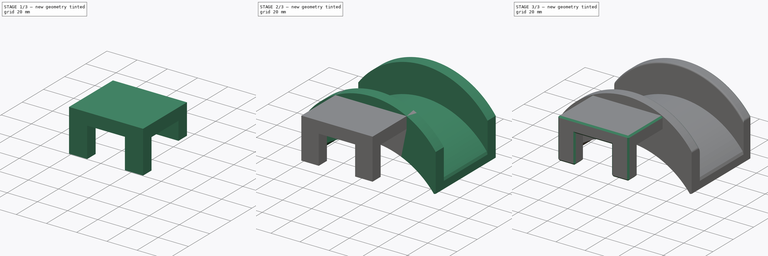
[diagram: build sequence overview — one tinted view per stage of 3, left to right]
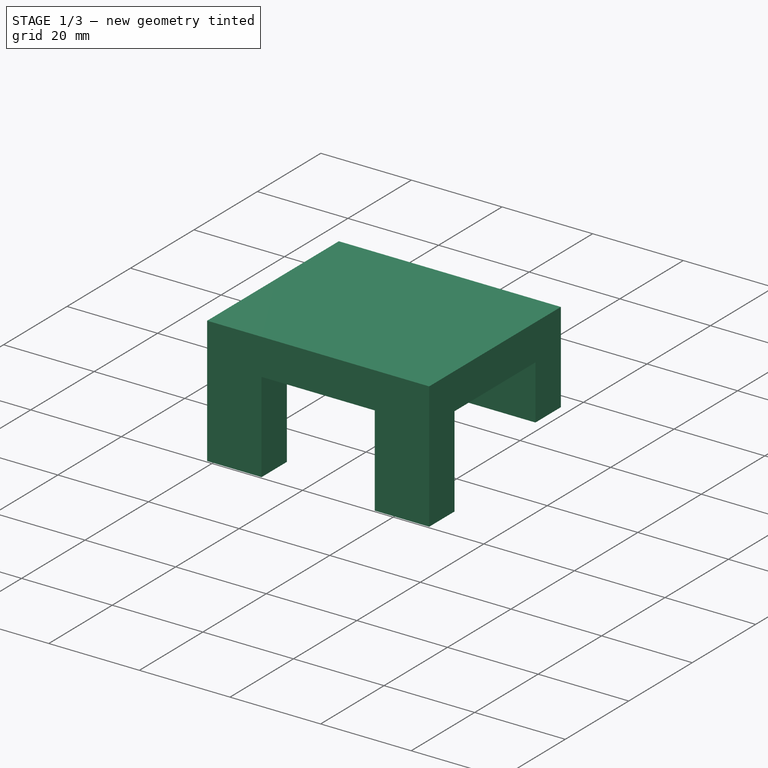
[diagram: stage 1 of 3 — iso view after this stage's code; geometry added in this stage tinted green]
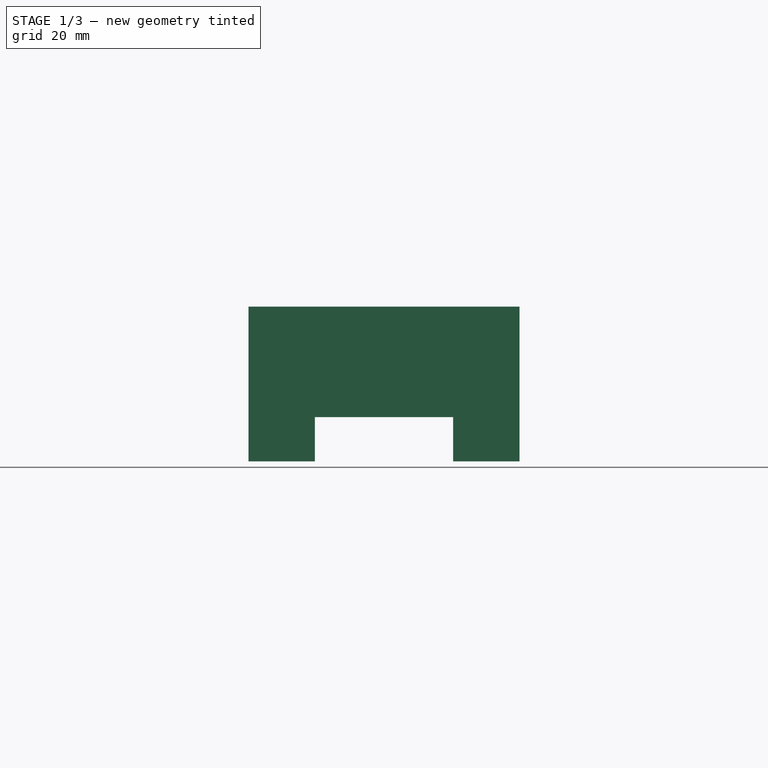
[diagram: stage 1 of 3 — front view after this stage's code; geometry added in this stage tinted green]
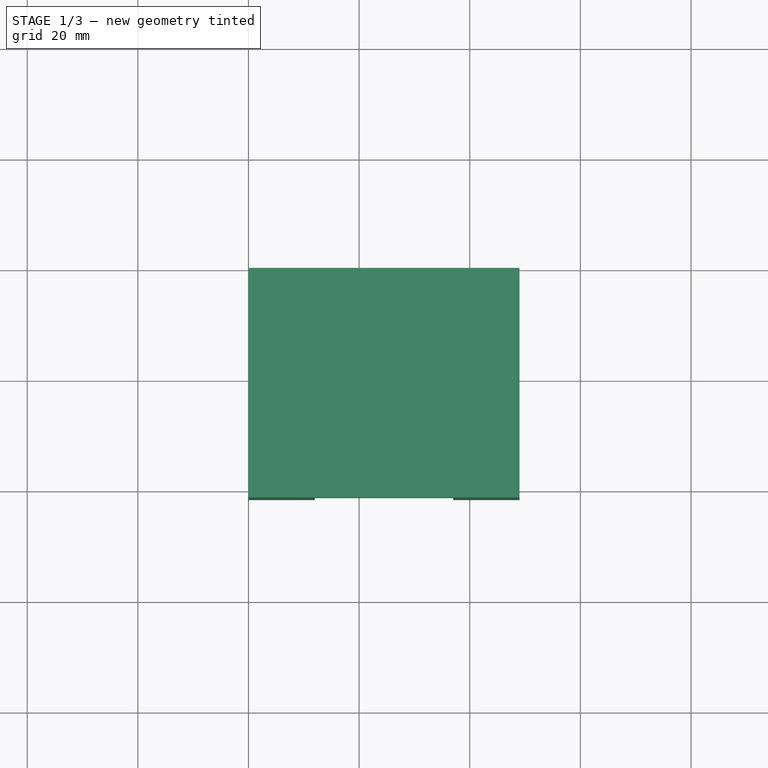
[diagram: stage 1 of 3 — top view after this stage's code; geometry added in this stage tinted green]
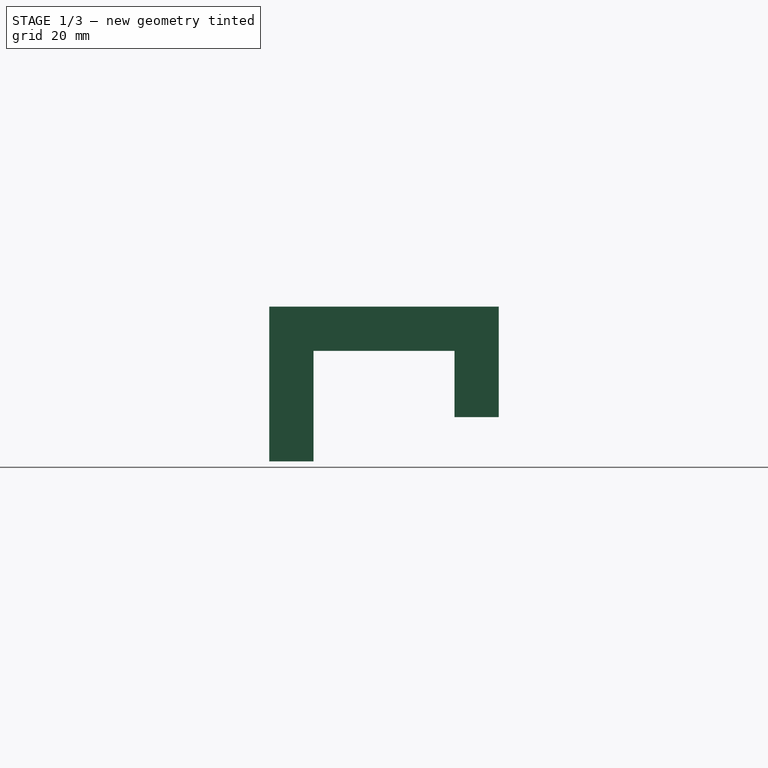
[diagram: stage 1 of 3 — right view after this stage's code; geometry added in this stage tinted green]
FCSTD DOCUMENT  (FreeCAD 0.19R20839 (Git))
Label: shelf hook
License: All rights reserved
LicenseURL: http://en.wikipedia.org/wiki/All_rights_reserved
objects: Sketcher::SketchObject×4, PartDesign::Plane×3, PartDesign::Chamfer×2, PartDesign::Pad×1, PartDesign::Pocket×1, PartDesign::AdditivePipe×1, PartDesign::Body×1, Part::Fillet×1, Part::Chamfer×1
note: 20 computed .brp shape members not serialized (recipe doc carries the construction recipe); baked Part::Feature solids carry a one-line shape summary decoded from their .brp

FEATURE [Sketcher::SketchObject] Sketch
  MapMode = 5
  Placement = pos=(0,0,0) rot=(0.57735,0.57735,0.57735;2.0944rad)
  Support = -> [YZ_Plane]
  sketch-geometry (8):
    g0: LineSegment StartX=0 StartY=25 StartZ=0 EndX=0 EndY=45 EndZ=0
    g1: LineSegment StartX=0 StartY=45 StartZ=0 EndX=-41.5 EndY=45 EndZ=0
    g2: LineSegment StartX=-41.5 StartY=45 StartZ=0 EndX=-41.5 EndY=17 EndZ=0
    g3: LineSegment StartX=-41.5 StartY=17 StartZ=0 EndX=-33.5 EndY=17 EndZ=0
    g4: LineSegment StartX=-33.5 StartY=17 StartZ=0 EndX=-33.5 EndY=37 EndZ=0
    g5: LineSegment StartX=-33.5 StartY=37 StartZ=0 EndX=-8 EndY=37 EndZ=0
    g6: LineSegment StartX=-8 StartY=37 StartZ=0 EndX=-8 EndY=25 EndZ=0
    g7: LineSegment StartX=-8 StartY=25 StartZ=0 EndX=0 EndY=25 EndZ=0
  constraints (24):
    c: Coincident(g0,g1)
    c: Horizontal(g1)
    c: Coincident(g1,g2)
    c: Vertical(g2)
    c: Coincident(g2,g3)
    c: Horizontal(g3)
    c: Coincident(g3,g4)
    c: Coincident(g4,g5)
    c: Horizontal(g5)
    c: Coincident(g5,g6)
    c: Vertical(g6)
    c: DistanceX(g5,g5) = 25.5
    c: DistanceY(g4,g4) = 20
    c: Vertical(g4)
    c: DistanceY(g0,g0) = 20
    c: Equal(g3,g7)
    c: DistanceX(g3,g3) = 8
    c: DistanceY(g5,g0) = 8
    c: Coincident(g6,g7)
    c: Horizontal(g7)
    c: Coincident(g0,g7)
    c: Vertical(g0)
    c: PointOnObject(g0,g-2)
    c: DistanceY(g-1,g0) = 45
FEATURE [PartDesign::Pad] Pad
  Length = 49
  Length2 = 100
  Placement = pos=(0,0,0) rot=(0.57735,0.57735,0.57735;2.0944rad)
  Profile = -> Sketch
  Refine = true
  Type = 0
FEATURE [PartDesign::Plane] DatumPlane
  Length = 60
  MapMode = 5
  Placement = pos=(-4.8e-15,7.5e-15,17) rot=(0.707107,0.707107,0;3.14159rad)
  ResizeMode = 0
  Support = -> [Pad]
  Width = 60
FEATURE [Sketcher::SketchObject] Sketch001
  ExternalGeometry = -> [Pad]
  MapMode = 5
  Placement = pos=(-4.8e-15,7.5e-15,17) rot=(0.707107,0.707107,0;3.14159rad)
  Support = -> [DatumPlane]
  sketch-geometry (6):
    g0: LineSegment StartX=-31.5 StartY=37 StartZ=0 EndX=-51.5 EndY=37 EndZ=0
    g1: LineSegment StartX=-51.5 StartY=37 StartZ=0 EndX=-51.5 EndY=12 EndZ=0
    g2: LineSegment StartX=-51.5 StartY=12 StartZ=0 EndX=-31.5 EndY=12 EndZ=0
    g3: LineSegment StartX=-31.5 StartY=12 StartZ=0 EndX=-31.5 EndY=37 EndZ=0
    g4: LineSegment [constr] StartX=-41.5 StartY=49 StartZ=0 EndX=-41.5 EndY=37 EndZ=0
    g5: LineSegment [constr] StartX=-41.5 StartY=12 StartZ=0 EndX=-41.5 EndY=2.13e-14 EndZ=0
  constraints (18):
    c: Coincident(g0,g1)
    c: Coincident(g1,g2)
    c: Coincident(g2,g3)
    c: Coincident(g3,g0)
    c: Horizontal(g0)
    c: Horizontal(g2)
    c: Vertical(g1)
    c: Vertical(g3)
    c: DistanceY(g3,g3) = 25
    c: Coincident(g4,g-3)
    c: PointOnObject(g4,g0)
    c: PointOnObject(g5,g2)
    c: Coincident(g5,g-4)
    c: Perpendicular(g2,g5)
    c: Perpendicular(g0,g4)
    c: Equal(g4,g5)
    c: DistanceX(g1,g5) = 10
    c: DistanceX(g5,g2) = 10
FEATURE [PartDesign::Pocket] Pocket
  BaseFeature = -> Pad
  Length = 20
  Length2 = 100
  Offset = 22
  Placement = pos=(0,0,0) rot=(0.57735,0.57735,0.57735;2.0944rad)
  Profile = -> Sketch001
  Refine = true
  Type = 0
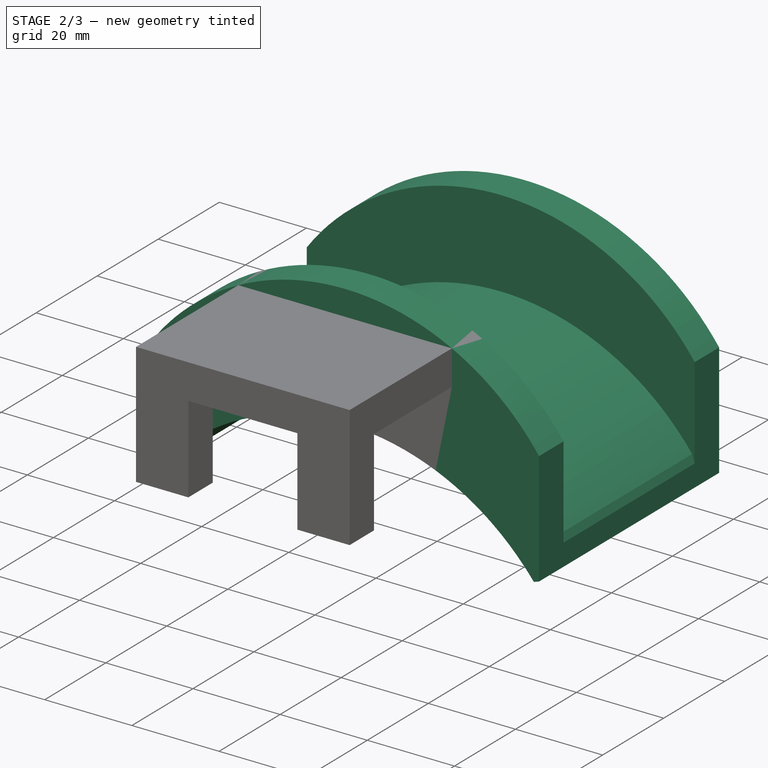
[diagram: stage 2 of 3 — iso view after this stage's code; geometry added in this stage tinted green]
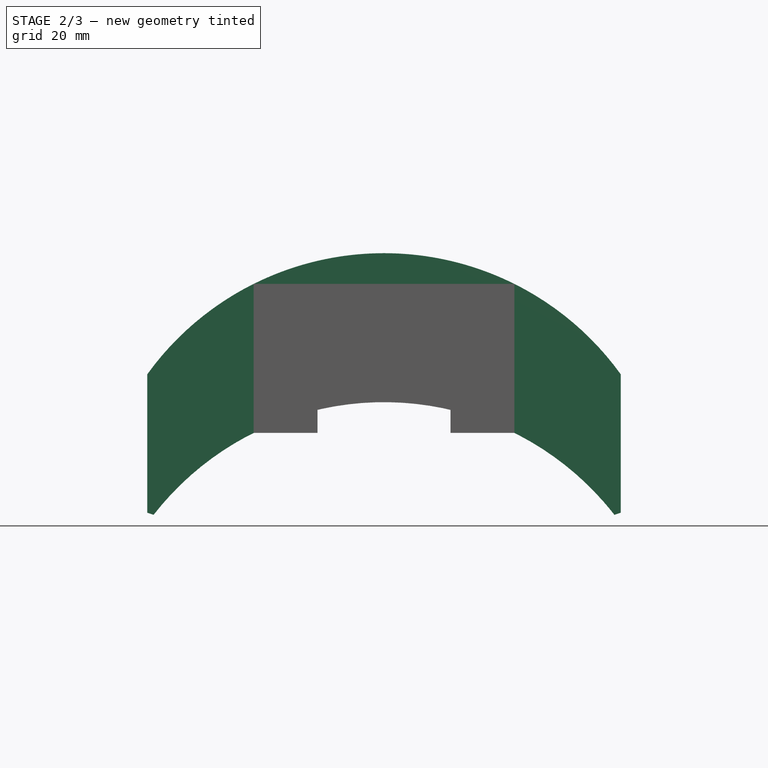
[diagram: stage 2 of 3 — front view after this stage's code; geometry added in this stage tinted green]
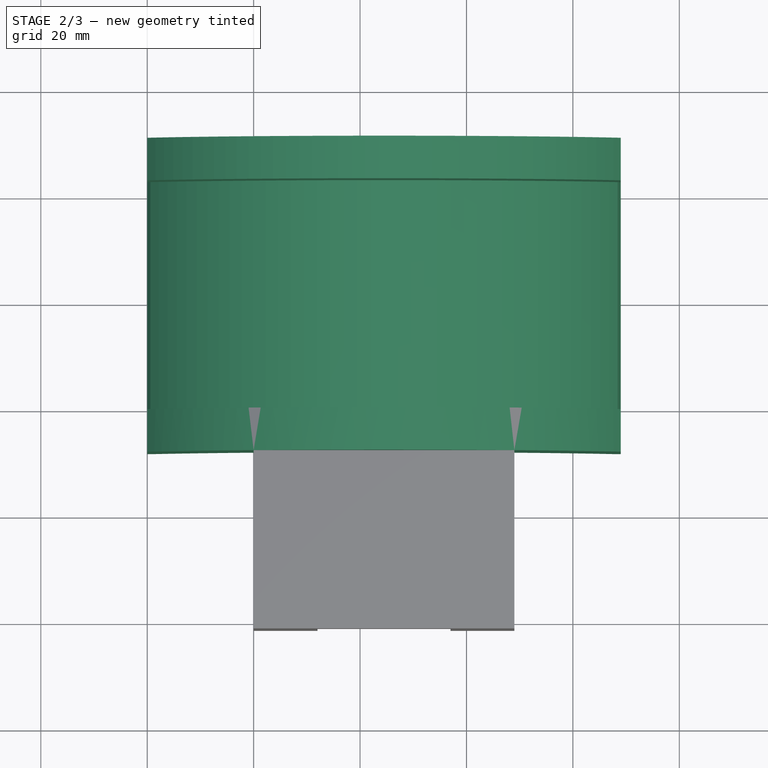
[diagram: stage 2 of 3 — top view after this stage's code; geometry added in this stage tinted green]
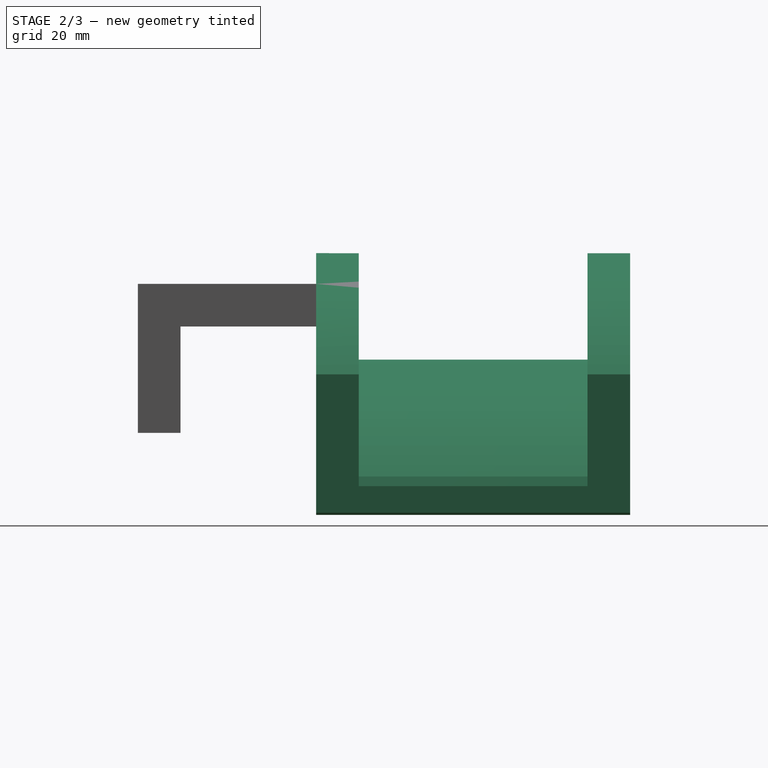
[diagram: stage 2 of 3 — right view after this stage's code; geometry added in this stage tinted green]
FEATURE [PartDesign::Plane] DatumPlane001
  AttachmentOffset = pos=(0,0,20) rot=(0,0,1;0rad)
  Length = 60
  MapMode = 5
  Placement = pos=(69,-1.52e-14,1.52e-14) rot=(0.57735,0.57735,0.57735;2.0944rad)
  ResizeMode = 0
  Support = -> [Pocket]
  Width = 60
FEATURE [Sketcher::SketchObject] Sketch002
  ExternalGeometry = -> [Sketch]
  MapMode = 5
  Placement = pos=(69,-1.52e-14,1.52e-14) rot=(0.57735,0.57735,0.57735;2.0944rad)
  Support = -> [DatumPlane001]
  sketch-geometry (8):
    g0: LineSegment StartX=43 StartY=8 StartZ=0 EndX=43 EndY=28 EndZ=0
    g1: LineSegment StartX=43 StartY=28 StartZ=0 EndX=51 EndY=28 EndZ=0
    g2: LineSegment StartX=51 StartY=28 StartZ=0 EndX=51 EndY=0 EndZ=0
    g3: LineSegment StartX=43 StartY=8 StartZ=0 EndX=0 EndY=8 EndZ=0
    g4: LineSegment StartX=-8 StartY=0 StartZ=0 EndX=51 EndY=0 EndZ=0
    g5: LineSegment StartX=0 StartY=8 StartZ=0 EndX=0 EndY=28 EndZ=0
    g6: LineSegment StartX=0 StartY=28 StartZ=0 EndX=-8 EndY=28 EndZ=0
    g7: LineSegment StartX=-8 StartY=28 StartZ=0 EndX=-8 EndY=0 EndZ=0
  constraints (24):
    c: Coincident(g0,g1)
    c: Horizontal(g1)
    c: Coincident(g1,g2)
    c: Vertical(g2)
    c: Vertical(g0)
    c: DistanceY(g0,g3) = 0
    c: DistanceX(g3,g0) = 43
    c: DistanceY(g4,g3) = 8
    c: DistanceX(g1,g1) = 8
    c: DistanceY(g0,g0) = 20
    c: Coincident(g3,g0)
    c: Vertical(g5)
    c: Horizontal(g6)
    c: Equal(g1,g6)
    c: Equal(g5,g0)
    c: Vertical(g7)
    c: PointOnObject(g5,g-2)
    c: Coincident(g5,g6)
    c: Coincident(g6,g7)
    c: Coincident(g4,g7)
    c: Coincident(g5,g3)
    c: PointOnObject(g4,g-1)
    c: Coincident(g4,g2)
    c: PointOnObject(g2,g-1)
FEATURE [PartDesign::Plane] DatumPlane002
  Length = 60
  MapMode = 5
  Placement = pos=(0,0,0) rot=(0.57735,0.57735,0.57735;4.18879rad)
  ResizeMode = 0
  Support = -> [Pocket]
  Width = 60
FEATURE [Sketcher::SketchObject] Sketch003
  ExternalGeometry = -> [Pad,Sketch002]
  MapMode = 5
  Placement = pos=(0,0,0) rot=(0.57735,0.57735,0.57735;4.18879rad)
  Support = -> [DatumPlane002]
  sketch-geometry (1):
    g0: ArcOfCircle CenterX=-4.08824 CenterY=24.5 CenterZ=0 NormalX=0 NormalY=0 NormalZ=1 AngleXU=0 Radius=54.8626 StartAngle=5.33713 EndAngle=7.22925
  constraints (4):
    c: PointOnObject(g-3,g0)
    c: PointOnObject(g-4,g0)
    c: Coincident(g0,g-5)
    c: DistanceX(g0,g0) = 0
FEATURE [PartDesign::AdditivePipe] AdditivePipe
  AuxilleryCurvelinear = true
  AuxillerySpineTangent = false
  BaseFeature = -> Pocket
  Binormal = (0,0,0)
  Mode = 1
  Placement = pos=(0,0,0) rot=(0.57735,0.57735,0.57735;2.0944rad)
  Profile = -> Sketch002
  Refine = true
  Spine = -> Sketch003
  SpineTangent = true
  Transformation = 0
  Transition = 0
FEATURE [PartDesign::Chamfer] Chamfer
  Base = -> AdditivePipe [Edge15,Edge8]
  BaseFeature = -> AdditivePipe
  Placement = pos=(0,0,0) rot=(0.57735,0.57735,0.57735;2.0944rad)
  Refine = true
  Size = 2
  SupportTransform = true
FEATURE [PartDesign::Chamfer] Chamfer001
  Base = -> Chamfer [Edge32,Edge7]
  BaseFeature = -> Chamfer
  Placement = pos=(0,0,0) rot=(0.57735,0.57735,0.57735;2.0944rad)
  Refine = true
  Size = 1
  SupportTransform = true
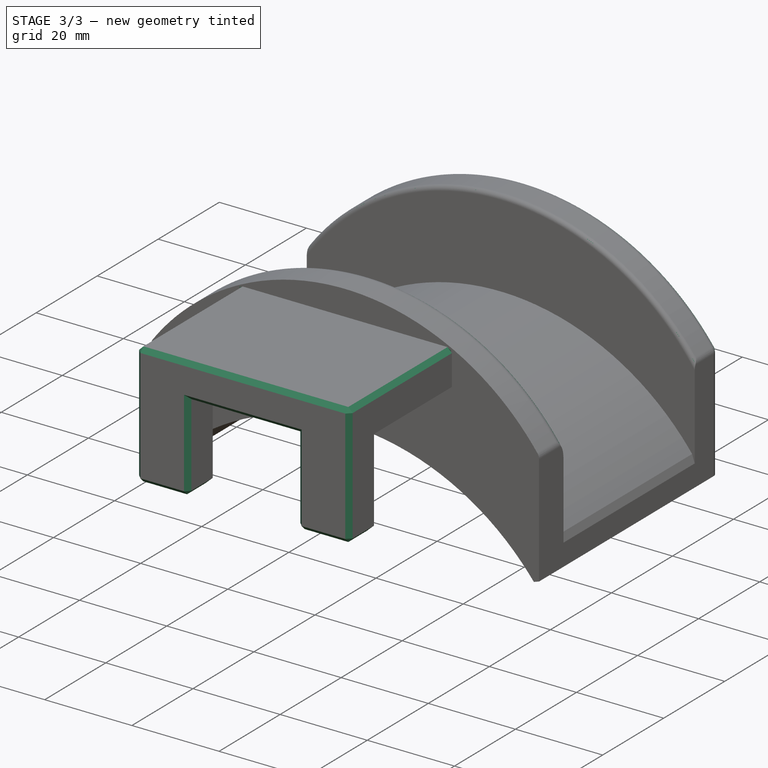
[diagram: stage 3 of 3 — iso view after this stage's code; geometry added in this stage tinted green]
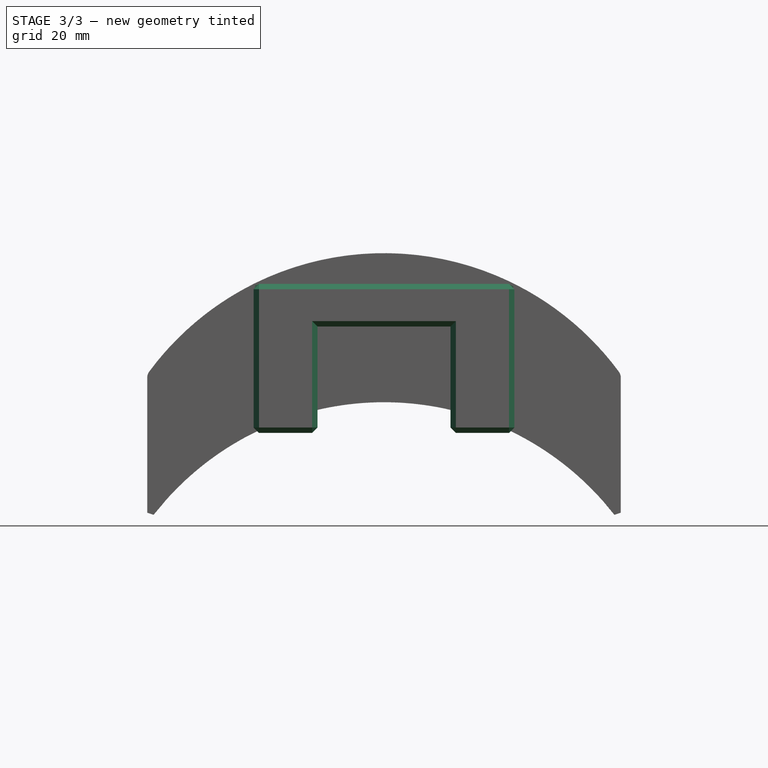
[diagram: stage 3 of 3 — front view after this stage's code; geometry added in this stage tinted green]
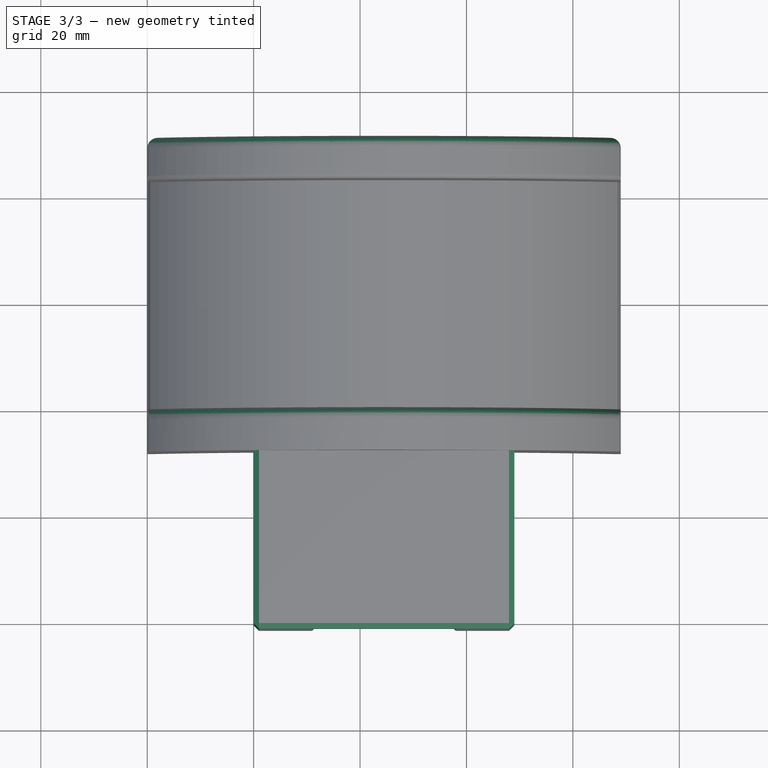
[diagram: stage 3 of 3 — top view after this stage's code; geometry added in this stage tinted green]
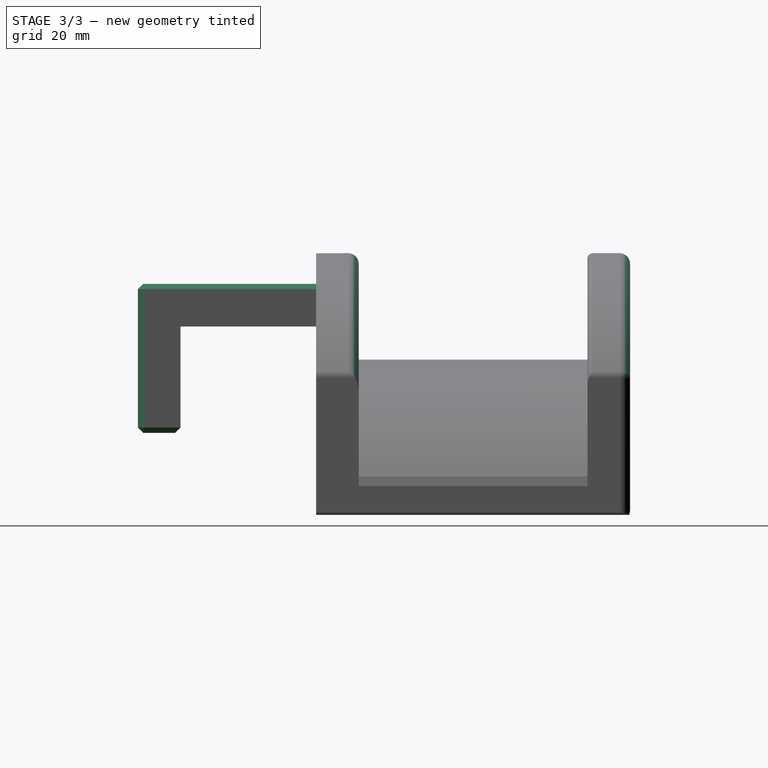
[diagram: stage 3 of 3 — right view after this stage's code; geometry added in this stage tinted green]
FEATURE [PartDesign::Body] Body
  Group = -> [Sketch,Pad,DatumPlane,Sketch001,Pocket,DatumPlane001,Sketch002,DatumPlane002,Sketch003,AdditivePipe,Chamfer,Chamfer001]
  Origin = -> Origin
  Tip = -> Chamfer001
FEATURE [Part::Fillet] Fillet
  Base = -> Chamfer001
  Edges = 9 edges: [Edge4 r=2,Edge6 r=2,Edge9 r=2,Edge16 r=1,Edge19 r=2,Edge20 r=2,Edge25 r=2,Edge28 r=2,Edge35 r=2]
FEATURE [Part::Chamfer] Chamfer002
  Base = -> Fillet
  Edges = 16 edges r=1: [Edge73,Edge74,Edge75,Edge80,Edge84,Edge85,Edge86,Edge92,Edge93,Edge94,Edge95,Edge96,Edge97,Edge98,Edge100,Edge101]
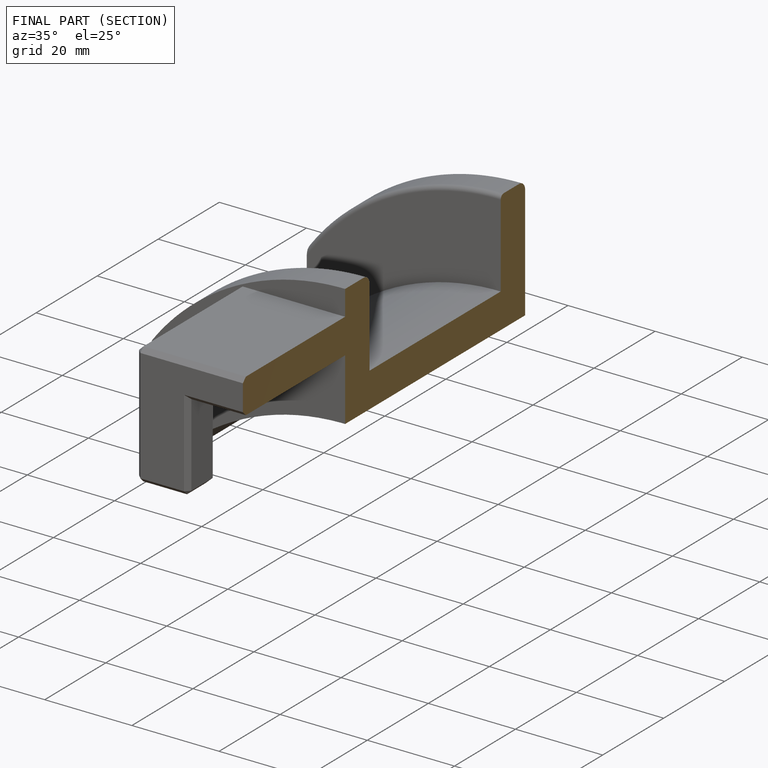
[diagram: finished part — half-section view (interior)]
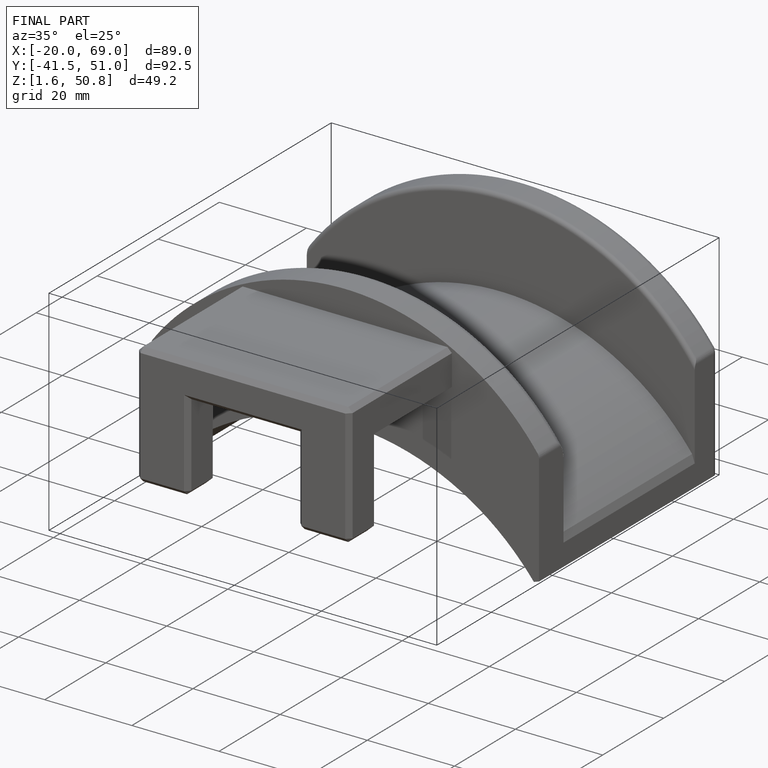
[diagram: finished part — iso view with bounding-box wireframe]
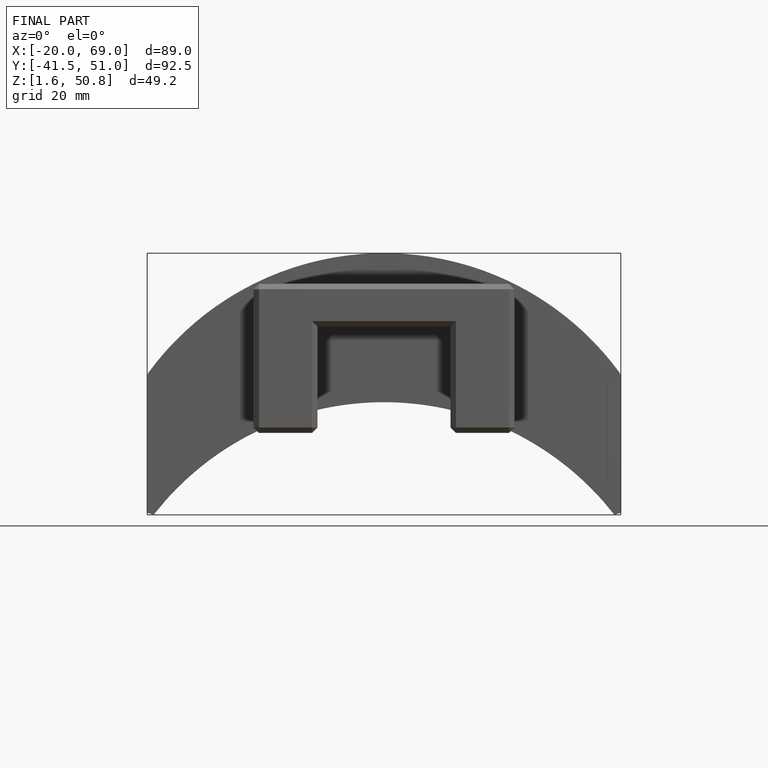
[diagram: finished part — front view with bounding-box wireframe]
